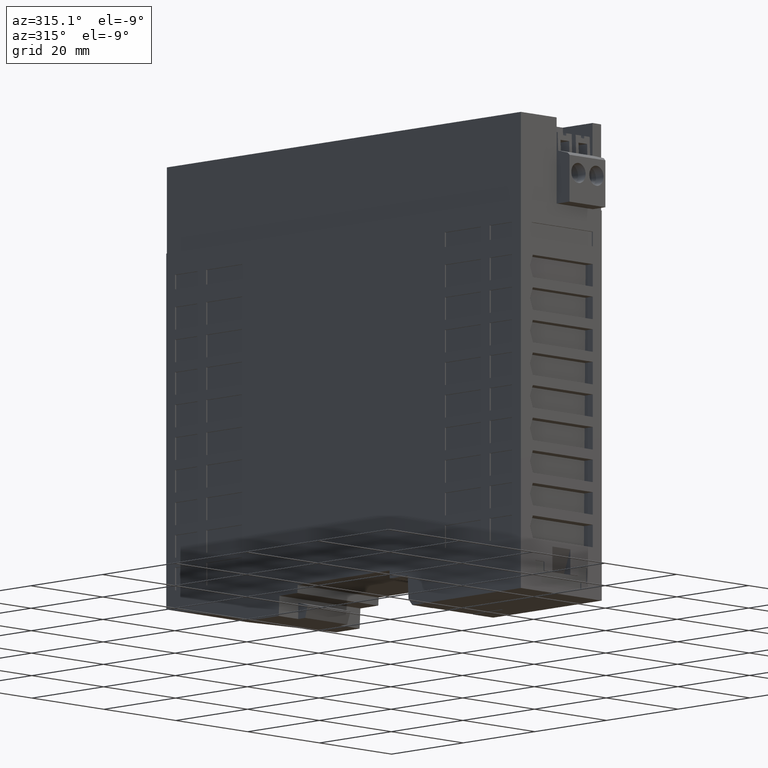
[diagram: clean part render]
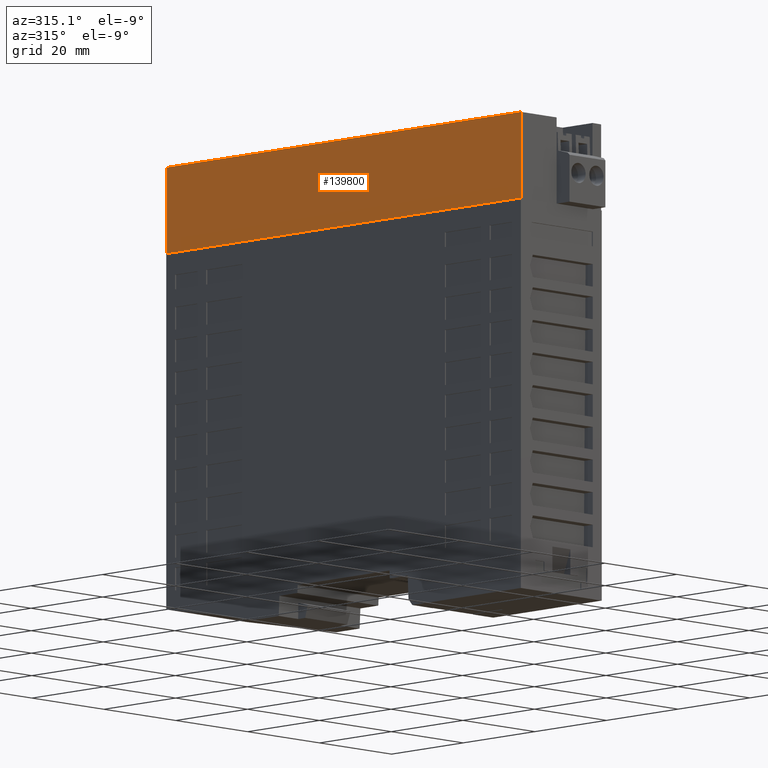
[diagram: same view with one face highlighted and labeled with its STEP entity id]
A machine part, auxiliary view. The second image highlights one B-rep face of the part: STEP entity #139800.
In plain terms, the highlighted planar face has unit normal (1, 0, 0).
Its self-contained STEP definition (entity closure, byte-faithful):
#134200=CARTESIAN_POINT('',(11.15,89.,-49.4));
#134210=VERTEX_POINT('',#134200);
#134240=CARTESIAN_POINT('',(11.15,89.,0.));
#134250=DIRECTION('',(1.38777878078145E-16,0.,1.));
#134260=VECTOR('',#134250,1.);
#134270=LINE('',#134240,#134260);
#134280=CARTESIAN_POINT('',(11.15,89.,49.4));
#134290=VERTEX_POINT('',#134280);
#134300=EDGE_CURVE('',#134210,#134290,#134270,.T.);
#137490=CARTESIAN_POINT('',(11.15,71.8,49.4));
#137500=DIRECTION('',(1.38777878078145E-16,1.,0.));
#137510=VECTOR('',#137500,1.);
#137520=LINE('',#137490,#137510);
#137530=CARTESIAN_POINT('',(11.15,71.8,49.4));
#137540=VERTEX_POINT('',#137530);
#137550=EDGE_CURVE('',#137540,#134290,#137520,.T.);
#139570=CARTESIAN_POINT('',(11.15,71.8,49.4));
#139580=DIRECTION('',(-1.,1.38777878078145E-16,1.38777878078145E-16));
#139590=DIRECTION('',(-1.38777878078145E-16,1.92592994438724E-32,-1.));
#139600=AXIS2_PLACEMENT_3D('',#139570,#139580,#139590);
#139610=PLANE('',#139600);
#139620=CARTESIAN_POINT('',(11.15,71.8,-49.4));
#139630=DIRECTION('',(1.38777878078145E-16,1.,0.));
#139640=VECTOR('',#139630,1.);
#139650=LINE('',#139620,#139640);
#139660=CARTESIAN_POINT('',(11.15,71.8,-49.4));
#139670=VERTEX_POINT('',#139660);
#139680=EDGE_CURVE('',#139670,#134210,#139650,.T.);
#139690=ORIENTED_EDGE('',*,*,#139680,.T.);
#139700=CARTESIAN_POINT('',(11.15,71.8,-5.55111512312581E-17));
#139710=DIRECTION('',(1.38777878078145E-16,-1.92592994438724E-32,1.));
#139720=VECTOR('',#139710,1.);
#139730=LINE('',#139700,#139720);
#139740=EDGE_CURVE('',#139670,#137540,#139730,.T.);
#139750=ORIENTED_EDGE('',*,*,#139740,.F.);
#139760=ORIENTED_EDGE('',*,*,#137550,.F.);
#139770=ORIENTED_EDGE('',*,*,#134300,.T.);
#139780=EDGE_LOOP('',(#139770,#139760,#139750,#139690));
#139790=FACE_OUTER_BOUND('',#139780,.T.);
#139800=ADVANCED_FACE('',(#139790),#139610,.F.);